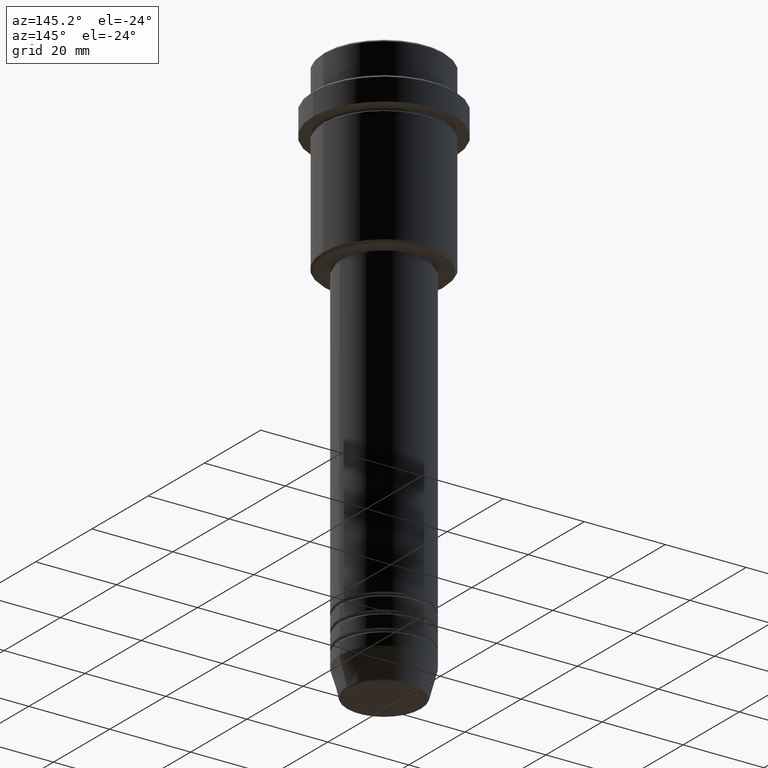
[diagram: clean part render]
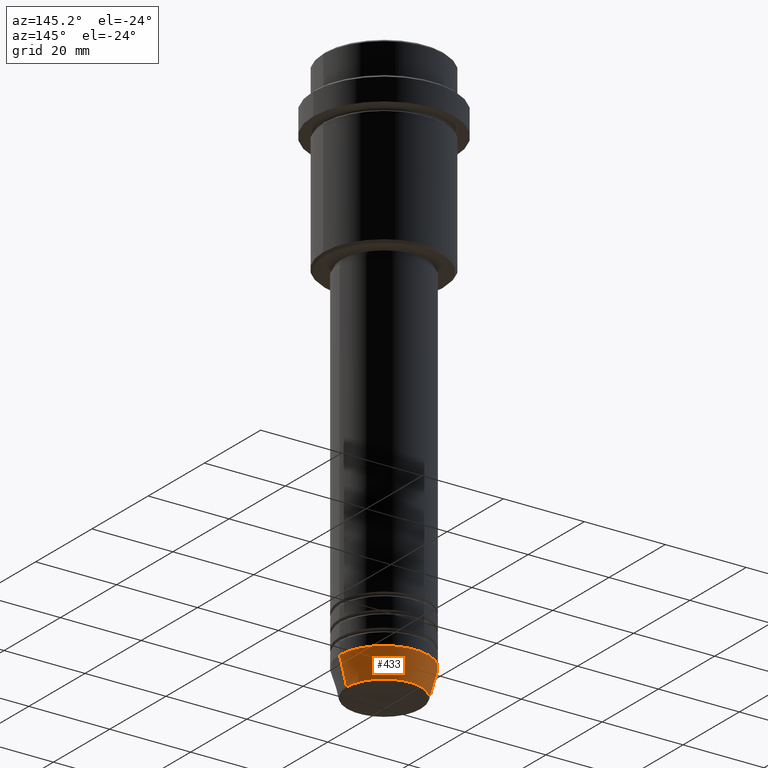
[diagram: same view with one face highlighted and labeled with its STEP entity id]
A machine part, auxiliary view. The second image highlights one B-rep face of the part: STEP entity #433.
In plain terms, the highlighted conical surface has half-angle 15 deg.
Its self-contained STEP definition (entity closure, byte-faithful):
#25 = CARTESIAN_POINT ( 'NONE',  ( 0.000000000000000000, 0.000000000000000000, -133.0000000000000000 ) ) ;
#72 = CARTESIAN_POINT ( 'NONE',  ( -9.223655072137189492, 1.238341722557647202E-15, -139.6294095225512706 ) ) ;
#85 = VERTEX_POINT ( 'NONE', #72 ) ;
#97 = VECTOR ( 'NONE', #1019, 1000.000000000000000 ) ;
#128 = CARTESIAN_POINT ( 'NONE',  ( 0.000000000000000000, 0.000000000000000000, -133.0000000000000000 ) ) ;
#140 = FACE_OUTER_BOUND ( 'NONE', #764, .T. ) ;
#147 = DIRECTION ( 'NONE',  ( 1.000000000000000000, 0.000000000000000000, 0.000000000000000000 ) ) ;
#225 = AXIS2_PLACEMENT_3D ( 'NONE', #128, #246, #358 ) ;
#246 = DIRECTION ( 'NONE',  ( -0.000000000000000000, -0.000000000000000000, 1.000000000000000000 ) ) ;
#352 = AXIS2_PLACEMENT_3D ( 'NONE', #1216, #1104, #1112 ) ;
#358 = DIRECTION ( 'NONE',  ( 1.000000000000000000, 0.000000000000000000, 0.000000000000000000 ) ) ;
#377 = DIRECTION ( 'NONE',  ( -0.000000000000000000, -0.000000000000000000, 1.000000000000000000 ) ) ;
#433 = ADVANCED_FACE ( 'NONE', ( #140 ), #782, .T. ) ;
#457 = EDGE_CURVE ( 'NONE', #1068, #699, #813, .T. ) ;
#540 = EDGE_CURVE ( 'NONE', #699, #891, #971, .T. ) ;
#546 = ORIENTED_EDGE ( 'NONE', *, *, #457, .F. ) ;
#582 = ORIENTED_EDGE ( 'NONE', *, *, #1414, .T. ) ;
#600 = LINE ( 'NONE', #1283, #97 ) ;
#614 = CARTESIAN_POINT ( 'NONE',  ( 11.00000000000000000, 0.000000000000000000, -133.0000000000000000 ) ) ;
#658 = CARTESIAN_POINT ( 'NONE',  ( 11.00000000000000000, 0.000000000000000000, -133.0000000000000000 ) ) ;
#662 = ORIENTED_EDGE ( 'NONE', *, *, #697, .T. ) ;
#697 = EDGE_CURVE ( 'NONE', #85, #891, #600, .T. ) ;
#699 = VERTEX_POINT ( 'NONE', #658 ) ;
#725 = DIRECTION ( 'NONE',  ( 0.2588190451025213501, 0.000000000000000000, 0.9659258262890680902 ) ) ;
#764 = EDGE_LOOP ( 'NONE', ( #582, #662, #1304, #546 ) ) ;
#766 = CIRCLE ( 'NONE', #352, 9.223655072137189492 ) ;
#782 = CONICAL_SURFACE ( 'NONE', #225, 11.00000000000000000, 0.2617993877991500740 ) ;
#813 = LINE ( 'NONE', #614, #1059 ) ;
#827 = CARTESIAN_POINT ( 'NONE',  ( 9.223655072137189492, 0.000000000000000000, -139.6294095225512706 ) ) ;
#891 = VERTEX_POINT ( 'NONE', #897 ) ;
#897 = CARTESIAN_POINT ( 'NONE',  ( -11.00000000000000000, 1.347111479062088405E-15, -133.0000000000000000 ) ) ;
#971 = CIRCLE ( 'NONE', #1151, 11.00000000000000000 ) ;
#1019 = DIRECTION ( 'NONE',  ( -0.2588190451025213501, 3.169619151431772337E-17, 0.9659258262890680902 ) ) ;
#1059 = VECTOR ( 'NONE', #725, 1000.000000000000000 ) ;
#1068 = VERTEX_POINT ( 'NONE', #827 ) ;
#1104 = DIRECTION ( 'NONE',  ( -0.000000000000000000, -0.000000000000000000, 1.000000000000000000 ) ) ;
#1112 = DIRECTION ( 'NONE',  ( 1.000000000000000000, 0.000000000000000000, 0.000000000000000000 ) ) ;
#1151 = AXIS2_PLACEMENT_3D ( 'NONE', #25, #377, #147 ) ;
#1216 = CARTESIAN_POINT ( 'NONE',  ( 0.000000000000000000, 0.000000000000000000, -139.6294095225512706 ) ) ;
#1283 = CARTESIAN_POINT ( 'NONE',  ( -11.00000000000000000, 1.347111479062088405E-15, -133.0000000000000000 ) ) ;
#1304 = ORIENTED_EDGE ( 'NONE', *, *, #540, .F. ) ;
#1414 = EDGE_CURVE ( 'NONE', #1068, #85, #766, .T. ) ;